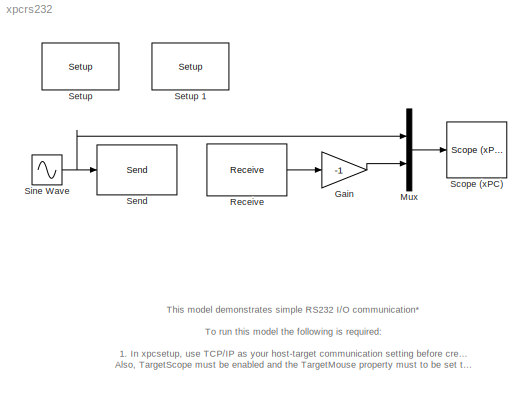
MODEL xpcrs232
KIND model
CONFIG AbsTol = auto
CONFIG FixedStep = auto
CONFIG MaxStep = auto
CONFIG MinStep = auto
CONFIG RelTol = 1e-3
CONFIG Solver = FixedStepDiscrete
CONFIG SolverMode = Auto
CONFIG StartTime = 0.0
CONFIG StopTime = 300
BLOCK [Gain] Gain
  Gain = -1
BLOCK [Mux] Mux
  DisplayOption = bar
  Inputs = 2
  Ports = [2, 1]
BLOCK [Reference] Receive   REF=xpclib/RS232/Asynchronous\nMode/Receive 
  Ports = [0, 1]
  SourceBlock = xpclib/RS232/Asynchronous\nMode/Receive
  SourceType = rs232rec
  formatrec = 'start,%f,stop;'
  numb = 1
  port = COM2
  ts = 0.01
BLOCK [Reference] Scope (xPC)   REF=xpclib/Misc./Scope (xPC) 
  Ports = [1]
  SourceBlock = xpclib/Misc./Scope (xPC)
  SourceType = xpcscopeblock
  autostart = on
  grid = on
  interleave = 1
  noprepostsamples = 0
  nosamples = 250
  scopeno = 1
  scopetype = Target
  triggerlevel = 0.0
  triggermode = FreeRun
  triggersample = 0
  triggerscope = 1
  triggersignal = 1
  triggerslope = either
  viewmode = Graphical rolling
  ylimits = [0,0]
BLOCK [Reference] Send   REF=xpclib/RS232/Asynchronous\nMode/Send 
  Ports = [1]
  SourceBlock = xpclib/RS232/Asynchronous\nMode/Send
  SourceType = rs232send
  formatsend = 'start,%f,stop;'
  port = COM1
  ts = 0.01
  wait = off
BLOCK [Reference] Setup   REF=xpclib/RS232/Setup 
  Ports = []
  SourceBlock = xpclib/RS232/Setup
  SourceType = rs232setup
  baudrate = 115200
  databit = 8
  parity = None
  port = COM1
  protocol = None
  recbuf = 1024
  sendbuf = 1024
  stopbit = 1
BLOCK [Reference] Setup 1  REF=xpclib/RS232/Setup 
  Ports = []
  SourceBlock = xpclib/RS232/Setup
  SourceType = rs232setup
  baudrate = 115200
  databit = 8
  parity = None
  port = COM2
  protocol = None
  recbuf = 1024
  sendbuf = 1024
  stopbit = 1
BLOCK [Sin] Sine Wave
  Frequency = 5
  SampleTime = 0
ANNOTATION (root): This model demonstrates simple RS232 I/O communication*\n\nTo run this model the following is required:\n\n1. In xpcsetup, use TCP/IP as your host-target communication setting before creating your boot disk.\nAlso, TargetScope must be enabled and the TargetMouse property must to be set to 'None'.\n\n2. Use the serial null-modem cable provided with xPC Target for connecting COM1 to \nCOM2 on the ta...<+182ch>
LINE Gain:1 -> Mux:2
LINE Mux:1 -> Scope (xPC) :1
LINE Receive :1 -> Gain:1
NET Sine Wave:1 -> Mux:1, Send :1
note: NET lines group one-source signal fan-out (src -> all destinations, sorted); 1:1 wires keep LINE
